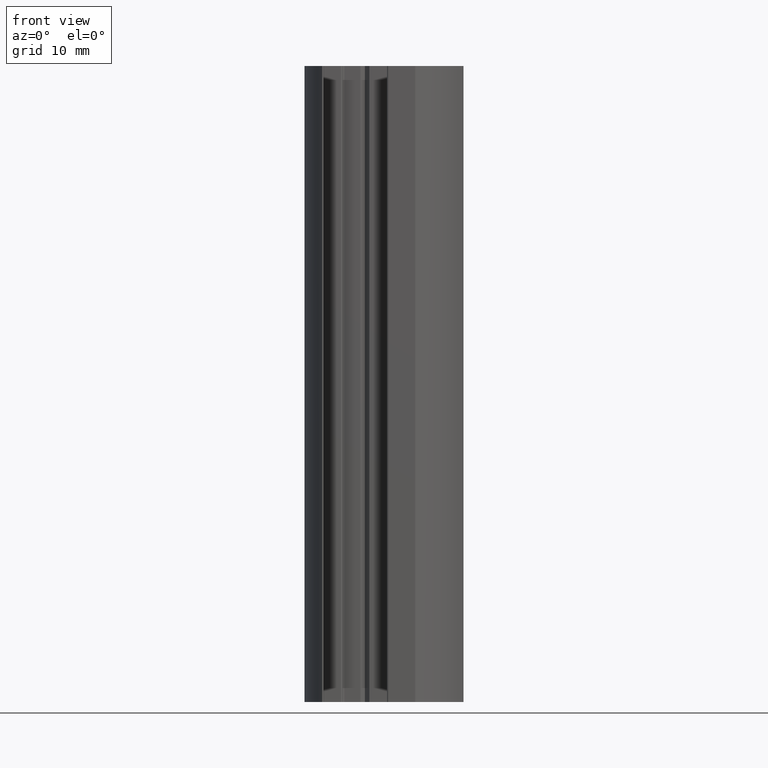
[diagram: clean part render]
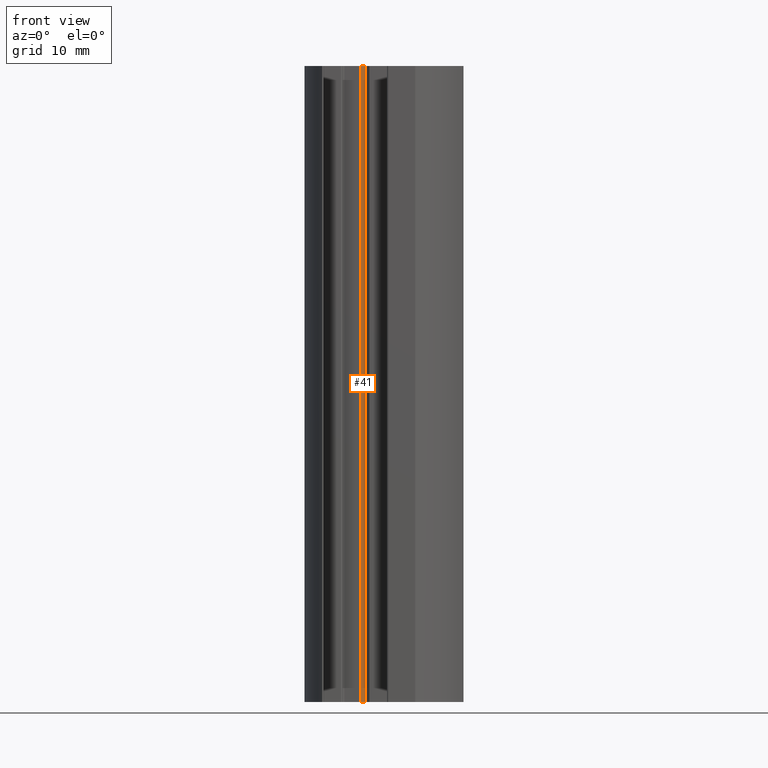
[diagram: same view with one face highlighted and labeled with its STEP entity id]
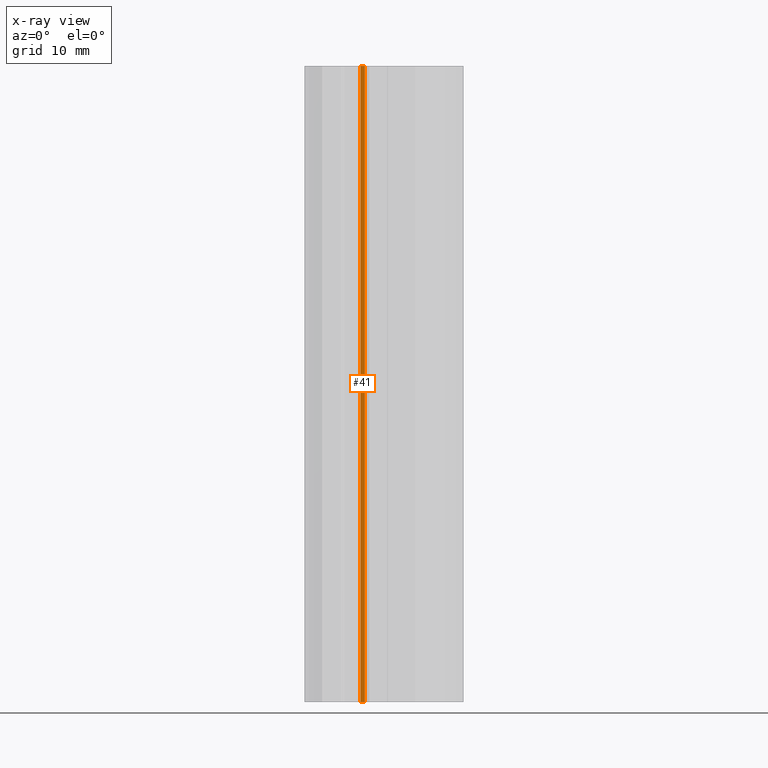
[diagram: x-ray of the same camera — body ghosted, the highlighted face saturated]
A machine part, front view. The second image highlights one B-rep face of the part: STEP entity #41.
The next image is the same camera in x-ray: the body ghosted, the highlighted face saturated — about 0% of this face is hidden behind the body in this view.
In plain terms, the highlighted planar face has unit normal (0.7071, -0.7071, 0).
Its self-contained STEP definition (entity closure, byte-faithful):
#2=CARTESIAN_POINT('',(-16.207106779576520,-12.499999998710422,0.0));
#3=DIRECTION('',(0.707106781186576,-0.707106781186519,0.0));
#4=DIRECTION('',(0.707106781186519,0.707106781186576,0.0));
#5=AXIS2_PLACEMENT_3D('',#2,#3,#4);
#6=PLANE('',#5);
#7=CARTESIAN_POINT('',(-16.207106779576520,-12.499999998710422,0.0));
#8=VERTEX_POINT('',#7);
#9=CARTESIAN_POINT('',(-15.499999998460680,-11.792893217594525,0.0));
#10=VERTEX_POINT('',#9);
#11=CARTESIAN_POINT('',(-16.207106779576520,-12.499999998710422,0.0));
#12=DIRECTION('',(0.707106781186519,0.707106781186576,0.0));
#13=VECTOR('',#12,0.999999999900045);
#14=LINE('',#11,#13);
#15=EDGE_CURVE('',#8,#10,#14,.T.);
#16=ORIENTED_EDGE('',*,*,#15,.T.);
#17=CARTESIAN_POINT('',(-15.499999998460680,-11.792893217594525,100.0));
#18=VERTEX_POINT('',#17);
#19=CARTESIAN_POINT('',(-15.499999998460680,-11.792893217594525,0.0));
#20=DIRECTION('',(0.0,0.0,1.0));
#21=VECTOR('',#20,100.0);
#22=LINE('',#19,#21);
#23=EDGE_CURVE('',#10,#18,#22,.T.);
#24=ORIENTED_EDGE('',*,*,#23,.T.);
#25=CARTESIAN_POINT('',(-16.207106779576520,-12.499999998710422,100.0));
#26=VERTEX_POINT('',#25);
#27=CARTESIAN_POINT('',(-16.207106779576520,-12.499999998710422,100.0));
#28=DIRECTION('',(0.707106781186519,0.707106781186576,0.0));
#29=VECTOR('',#28,0.999999999900045);
#30=LINE('',#27,#29);
#31=EDGE_CURVE('',#26,#18,#30,.T.);
#32=ORIENTED_EDGE('',*,*,#31,.F.);
#33=CARTESIAN_POINT('',(-16.207106779576520,-12.499999998710422,0.0));
#34=DIRECTION('',(0.0,0.0,1.0));
#35=VECTOR('',#34,100.0);
#36=LINE('',#33,#35);
#37=EDGE_CURVE('',#8,#26,#36,.T.);
#38=ORIENTED_EDGE('',*,*,#37,.F.);
#39=EDGE_LOOP('',(#16,#24,#32,#38));
#40=FACE_OUTER_BOUND('',#39,.T.);
#41=ADVANCED_FACE('',(#40),#6,.T.);